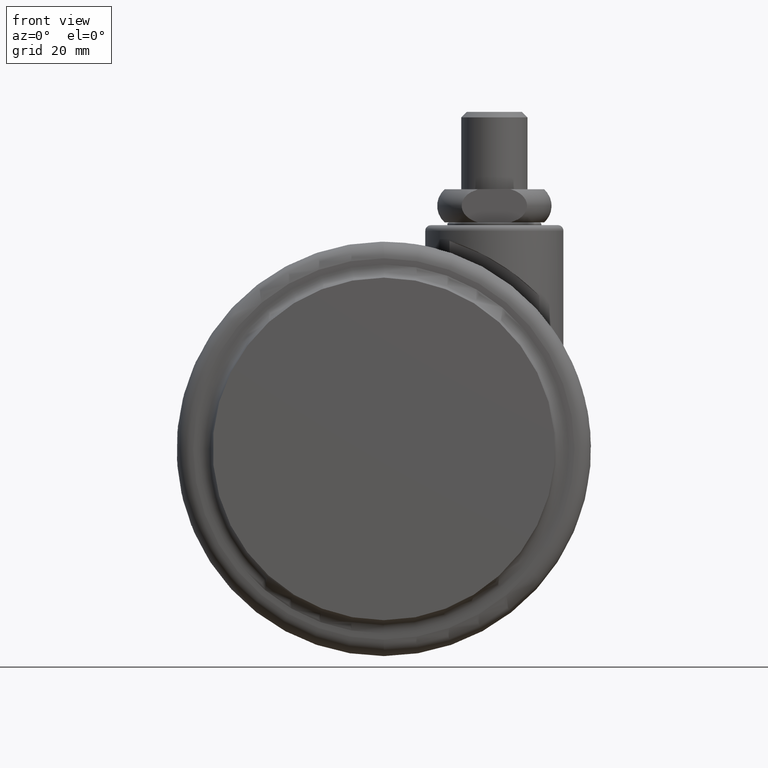
[diagram: clean part render]
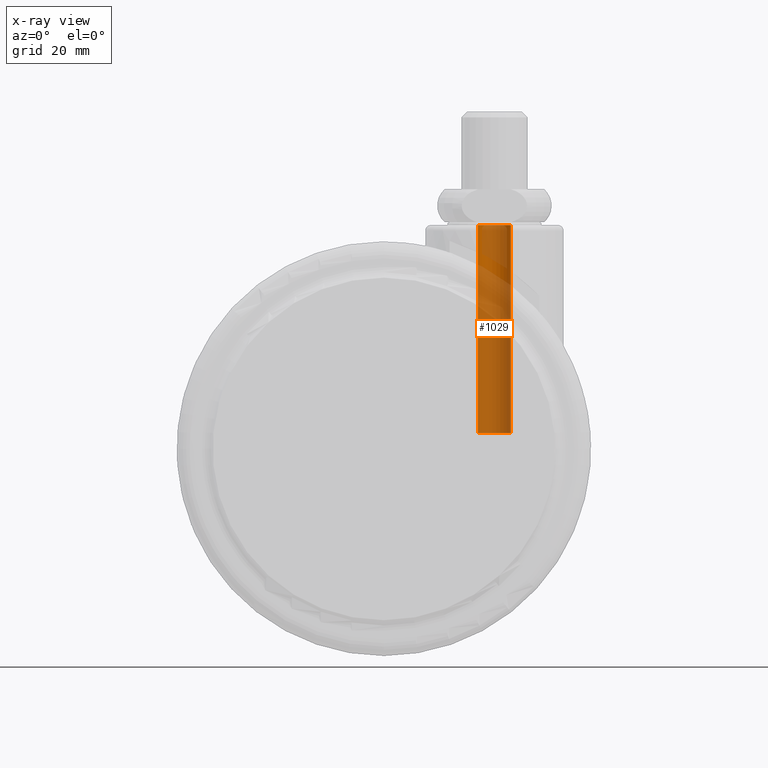
[diagram: x-ray — body ghosted, one internal face saturated and labeled with its STEP entity id]
A machine part, front view, then the same camera in x-ray: the body is ghosted and one INTERNAL B-rep face — a face not visible from any outside direction — is saturated and labeled: STEP entity #1029.
In plain terms, the highlighted cylindrical surface (edge-blend (fillet) strip) has radius 3 mm, axis along (0, 0, 1).
Its self-contained STEP definition (entity closure, byte-faithful):
#268 = CARTESIAN_POINT ( 'NONE',  ( -3.000000000000000000, 2.878910347014820000E-014, -1000.000000000000000 ) ) ;
#318 = VERTEX_POINT ( 'NONE', #1266 ) ;
#413 = AXIS2_PLACEMENT_3D ( 'NONE', #508, #2665, #839 ) ;
#447 = DIRECTION ( 'NONE',  ( 0.0000000000000000000, 0.0000000000000000000, 1.000000000000000000 ) ) ;
#499 = LINE ( 'NONE', #2293, #3649 ) ;
#508 = CARTESIAN_POINT ( 'NONE',  ( 0.0000000000000000000, 2.842170943040399500E-014, 0.0000000000000000000 ) ) ;
#762 = FACE_OUTER_BOUND ( 'NONE', #3247, .T. ) ;
#839 = DIRECTION ( 'NONE',  ( -1.000000000000000000, 0.0000000000000000000, 0.0000000000000000000 ) ) ;
#1029 = ADVANCED_FACE ( 'NONE', ( #762 ), #3102, .F. ) ;
#1121 = CARTESIAN_POINT ( 'NONE',  ( 0.0000000000000000000, 2.842170943040399500E-014, -1000.000000000000000 ) ) ;
#1128 = DIRECTION ( 'NONE',  ( -0.0000000000000000000, -0.0000000000000000000, 1.000000000000000000 ) ) ;
#1266 = CARTESIAN_POINT ( 'NONE',  ( 3.000000000000000000, 2.842170943040399500E-014, 0.0000000000000000000 ) ) ;
#1305 = DIRECTION ( 'NONE',  ( 0.0000000000000000000, 0.0000000000000000000, 1.000000000000000000 ) ) ;
#1365 = EDGE_CURVE ( 'NONE', #2007, #2511, #3047, .T. ) ;
#2007 = VERTEX_POINT ( 'NONE', #3244 ) ;
#2126 = VERTEX_POINT ( 'NONE', #2516 ) ;
#2240 = EDGE_CURVE ( 'NONE', #2126, #2007, #3719, .T. ) ;
#2293 = CARTESIAN_POINT ( 'NONE',  ( 3.000000000000000000, 2.842170943040399500E-014, -1000.000000000000000 ) ) ;
#2342 = DIRECTION ( 'NONE',  ( 1.000000000000000000, 0.0000000000000000000, 0.0000000000000000000 ) ) ;
#2511 = VERTEX_POINT ( 'NONE', #3482 ) ;
#2516 = CARTESIAN_POINT ( 'NONE',  ( 3.000000000000000000, 2.842170943040399500E-014, -37.61339081420354800 ) ) ;
#2567 = ORIENTED_EDGE ( 'NONE', *, *, #3429, .T. ) ;
#2665 = DIRECTION ( 'NONE',  ( -0.0000000000000000000, -0.0000000000000000000, 1.000000000000000000 ) ) ;
#2909 = ORIENTED_EDGE ( 'NONE', *, *, #1365, .F. ) ;
#2958 = CIRCLE ( 'NONE', #413, 3.000000000000000000 ) ;
#2973 = CARTESIAN_POINT ( 'NONE',  ( 0.0000000000000000000, 2.842170943040399500E-014, -37.61339081420354800 ) ) ;
#2976 = ORIENTED_EDGE ( 'NONE', *, *, #3929, .T. ) ;
#2985 = AXIS2_PLACEMENT_3D ( 'NONE', #1121, #1305, #2342 ) ;
#3047 = LINE ( 'NONE', #268, #3753 ) ;
#3102 = CYLINDRICAL_SURFACE ( 'NONE', #2985, 3.000000000000000000 ) ;
#3126 = ORIENTED_EDGE ( 'NONE', *, *, #2240, .F. ) ;
#3244 = CARTESIAN_POINT ( 'NONE',  ( -3.000000000000000000, 2.878910347014820000E-014, -37.61339081420354800 ) ) ;
#3247 = EDGE_LOOP ( 'NONE', ( #2909, #3126, #2976, #2567 ) ) ;
#3261 = DIRECTION ( 'NONE',  ( -1.000000000000000000, 0.0000000000000000000, 0.0000000000000000000 ) ) ;
#3429 = EDGE_CURVE ( 'NONE', #318, #2511, #2958, .T. ) ;
#3482 = CARTESIAN_POINT ( 'NONE',  ( -3.000000000000000000, 2.878910347014820000E-014, 0.0000000000000000000 ) ) ;
#3649 = VECTOR ( 'NONE', #447, 1000.000000000000000 ) ;
#3663 = DIRECTION ( 'NONE',  ( 0.0000000000000000000, 0.0000000000000000000, 1.000000000000000000 ) ) ;
#3719 = CIRCLE ( 'NONE', #3794, 3.000000000000000000 ) ;
#3753 = VECTOR ( 'NONE', #3663, 1000.000000000000000 ) ;
#3794 = AXIS2_PLACEMENT_3D ( 'NONE', #2973, #1128, #3261 ) ;
#3929 = EDGE_CURVE ( 'NONE', #2126, #318, #499, .T. ) ;